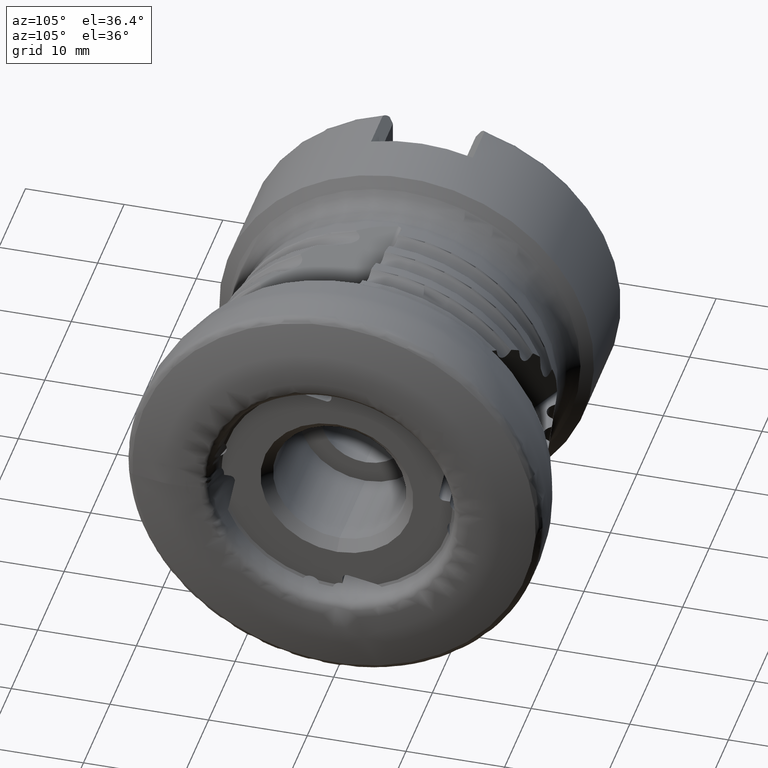
[diagram: clean part render]
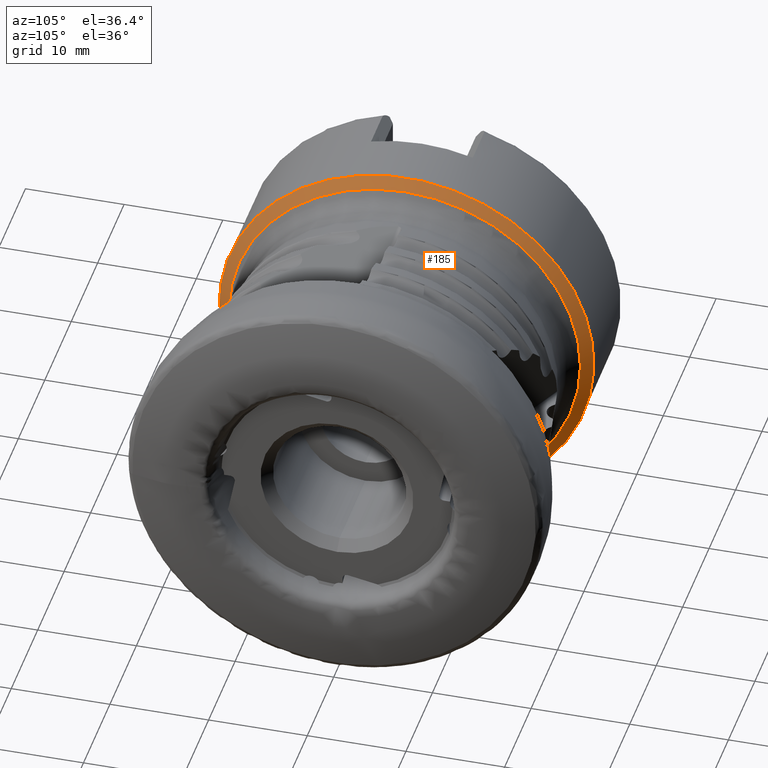
[diagram: same view with one face highlighted and labeled with its STEP entity id]
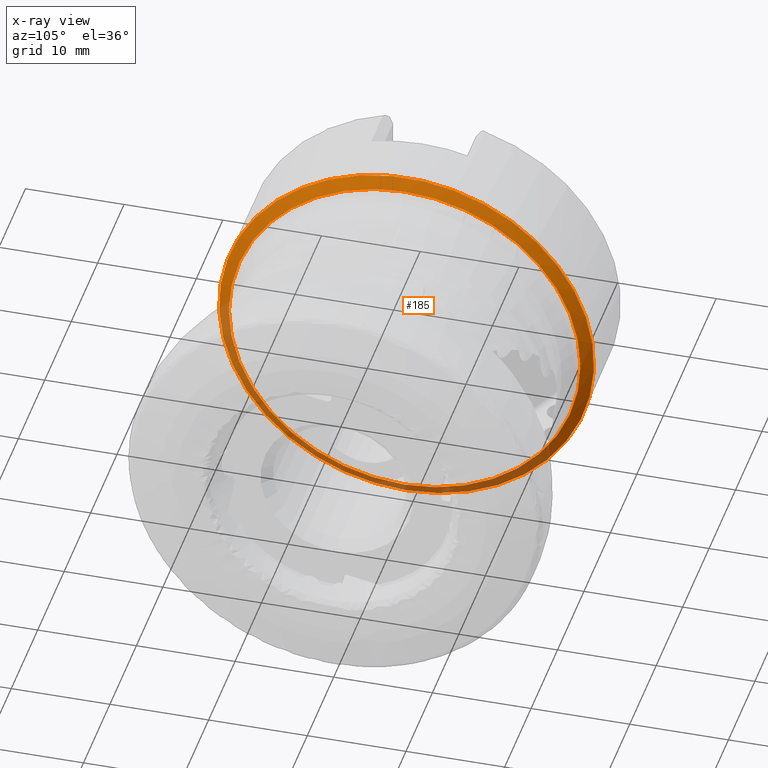
[diagram: x-ray of the same camera — body ghosted, the highlighted face saturated]
A machine part, auxiliary view. The second image highlights one B-rep face of the part: STEP entity #185.
The next image is the same camera in x-ray: the body ghosted, the highlighted face saturated — about 26% of this face is hidden behind the body in this view.
In plain terms, the highlighted conical surface has half-angle 60 deg.
Its self-contained STEP definition (entity closure, byte-faithful):
#185 = ADVANCED_FACE ( 'NONE', ( #1502, #4625 ), #2781, .T. ) ;
#226 = EDGE_CURVE ( 'NONE', #1237, #1237, #4421, .T. ) ;
#470 = AXIS2_PLACEMENT_3D ( 'NONE', #6910, #3165, #3791 ) ;
#499 = EDGE_CURVE ( 'NONE', #6029, #6029, #5899, .T. ) ;
#1167 = ORIENTED_EDGE ( 'NONE', *, *, #226, .T. ) ;
#1237 = VERTEX_POINT ( 'NONE', #3367 ) ;
#1502 = FACE_OUTER_BOUND ( 'NONE', #4716, .T. ) ;
#1619 = ORIENTED_EDGE ( 'NONE', *, *, #499, .F. ) ;
#2195 = CARTESIAN_POINT ( 'NONE',  ( -26.86685948722312400, 0.0000000000000000000, 0.0000000000000000000 ) ) ;
#2513 = DIRECTION ( 'NONE',  ( 0.0000000000000000000, 0.0000000000000000000, 1.000000000000000000 ) ) ;
#2781 = CONICAL_SURFACE ( 'NONE', #6908, 17.81676592316181400, 1.047197551196590300 ) ;
#2826 = DIRECTION ( 'NONE',  ( 0.0000000000000000000, 0.0000000000000000000, -1.000000000000000000 ) ) ;
#3139 = CARTESIAN_POINT ( 'NONE',  ( -26.86685948722312400, 0.0000000000000000000, 0.0000000000000000000 ) ) ;
#3165 = DIRECTION ( 'NONE',  ( 1.000000000000000000, -0.0000000000000000000, -0.0000000000000000000 ) ) ;
#3259 = EDGE_LOOP ( 'NONE', ( #1619 ) ) ;
#3367 = CARTESIAN_POINT ( 'NONE',  ( -27.54999999999999700, 0.0000000000000000000, -18.99999999999999600 ) ) ;
#3791 = DIRECTION ( 'NONE',  ( 0.0000000000000000000, 0.0000000000000000000, -1.000000000000000000 ) ) ;
#4421 = CIRCLE ( 'NONE', #470, 18.99999999999999600 ) ;
#4625 = FACE_BOUND ( 'NONE', #3259, .T. ) ;
#4651 = AXIS2_PLACEMENT_3D ( 'NONE', #2195, #6561, #2826 ) ;
#4716 = EDGE_LOOP ( 'NONE', ( #1167 ) ) ;
#5899 = CIRCLE ( 'NONE', #4651, 17.81676592316181400 ) ;
#6029 = VERTEX_POINT ( 'NONE', #7725 ) ;
#6561 = DIRECTION ( 'NONE',  ( 1.000000000000000000, -0.0000000000000000000, -0.0000000000000000000 ) ) ;
#6831 = DIRECTION ( 'NONE',  ( -1.000000000000000000, 0.0000000000000000000, 0.0000000000000000000 ) ) ;
#6908 = AXIS2_PLACEMENT_3D ( 'NONE', #3139, #6831, #2513 ) ;
#6910 = CARTESIAN_POINT ( 'NONE',  ( -27.54999999999999700, 0.0000000000000000000, 0.0000000000000000000 ) ) ;
#7725 = CARTESIAN_POINT ( 'NONE',  ( -26.86685948722312400, 0.0000000000000000000, -17.81676592316181400 ) ) ;